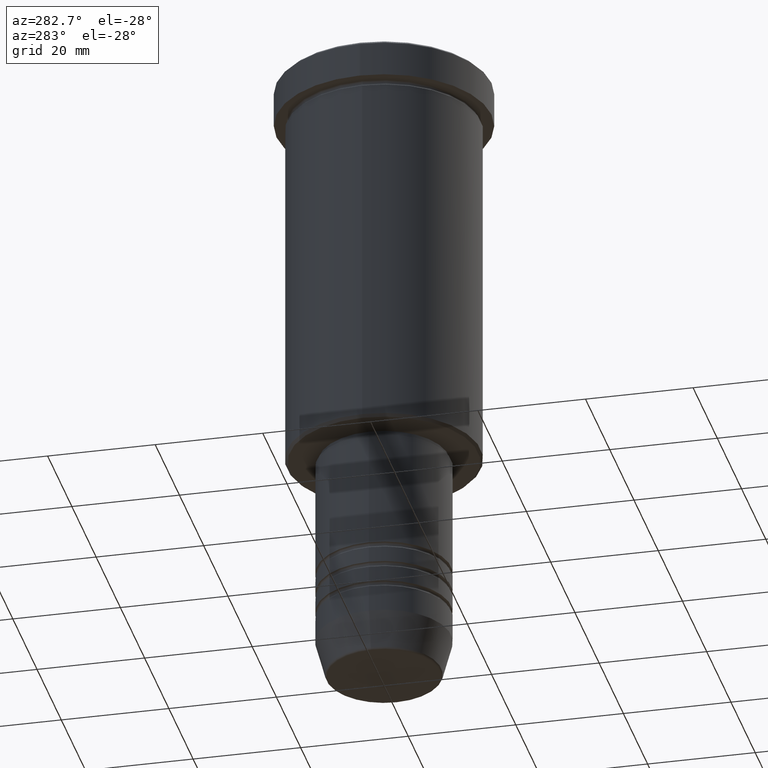
[diagram: clean part render]
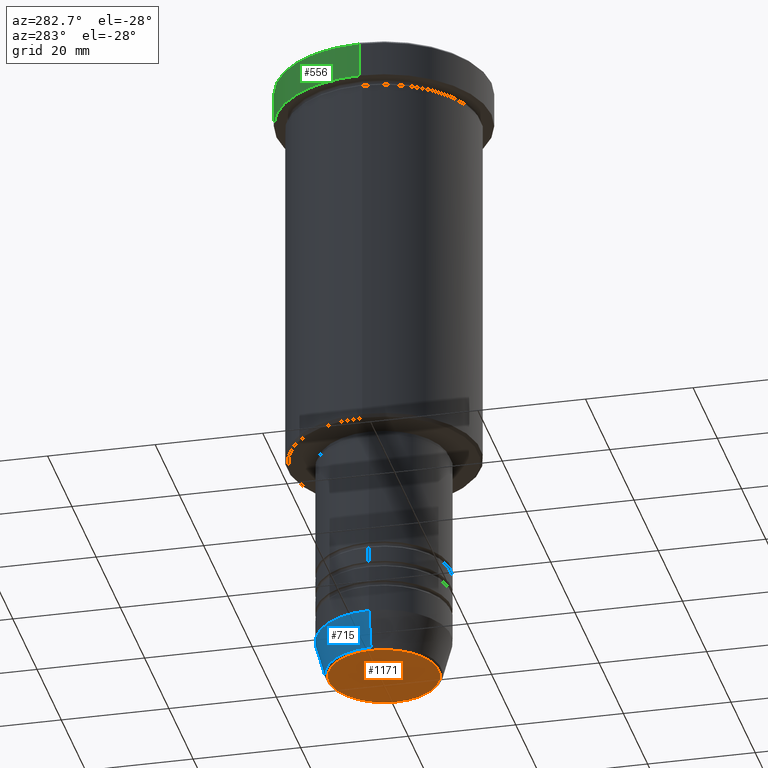
[diagram: same view with three faces highlighted in distinct colors, each labeled with its STEP entity id]
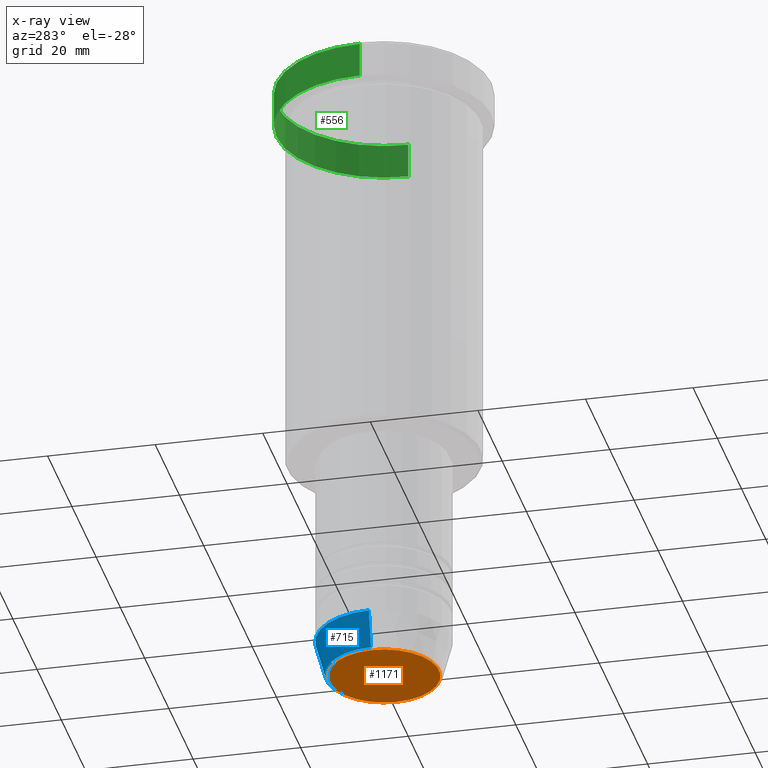
[diagram: x-ray of the same camera — body ghosted, the three highlighted faces saturated]
A machine part, auxiliary view with three faces highlighted in distinct colors.
The next image is the same camera in x-ray (body ghosted, the three faces saturated) — at least one of them is partly hidden behind the body in this view.
Their STEP definitions:

[orange] entity #1171 — the highlighted planar face has unit normal (0, -0, 1).
#22 = EDGE_CURVE ( 'NONE', #698, #440, #595, .T. ) ;
#50 = DIRECTION ( 'NONE',  ( 0.000000000000000000, -0.000000000000000000, 1.000000000000000000 ) ) ;
#135 = DIRECTION ( 'NONE',  ( 1.000000000000000000, 0.000000000000000000, 0.000000000000000000 ) ) ;
#145 = FACE_OUTER_BOUND ( 'NONE', #519, .T. ) ;
#168 = AXIS2_PLACEMENT_3D ( 'NONE', #262, #181, #466 ) ;
#181 = DIRECTION ( 'NONE',  ( 0.000000000000000000, 0.000000000000000000, -1.000000000000000000 ) ) ;
#262 = CARTESIAN_POINT ( 'NONE',  ( 0.000000000000000000, 0.000000000000000000, -120.0000000000000000 ) ) ;
#266 = CIRCLE ( 'NONE', #709, 10.24069215899265473 ) ;
#296 = CARTESIAN_POINT ( 'NONE',  ( 0.000000000000000000, 0.000000000000000000, -120.0000000000000000 ) ) ;
#440 = VERTEX_POINT ( 'NONE', #642 ) ;
#466 = DIRECTION ( 'NONE',  ( 1.000000000000000000, 0.000000000000000000, 0.000000000000000000 ) ) ;
#470 = ORIENTED_EDGE ( 'NONE', *, *, #1021, .T. ) ;
#518 = PLANE ( 'NONE',  #938 ) ;
#519 = EDGE_LOOP ( 'NONE', ( #470, #787 ) ) ;
#595 = CIRCLE ( 'NONE', #168, 10.24069215899265473 ) ;
#642 = CARTESIAN_POINT ( 'NONE',  ( 10.24069215899265473, 0.000000000000000000, -120.0000000000000000 ) ) ;
#677 = DIRECTION ( 'NONE',  ( 0.000000000000000000, 0.000000000000000000, -1.000000000000000000 ) ) ;
#698 = VERTEX_POINT ( 'NONE', #932 ) ;
#709 = AXIS2_PLACEMENT_3D ( 'NONE', #296, #677, #770 ) ;
#770 = DIRECTION ( 'NONE',  ( 1.000000000000000000, 0.000000000000000000, 0.000000000000000000 ) ) ;
#787 = ORIENTED_EDGE ( 'NONE', *, *, #22, .T. ) ;
#877 = CARTESIAN_POINT ( 'NONE',  ( 0.000000000000000000, 0.000000000000000000, -120.0000000000000000 ) ) ;
#932 = CARTESIAN_POINT ( 'NONE',  ( -10.24069215899265473, 1.283696036640841981E-15, -120.0000000000000000 ) ) ;
#938 = AXIS2_PLACEMENT_3D ( 'NONE', #877, #50, #135 ) ;
#1021 = EDGE_CURVE ( 'NONE', #440, #698, #266, .T. ) ;
#1171 = ADVANCED_FACE ( 'NONE', ( #145 ), #518, .F. ) ;

[blue] entity #715 — the highlighted conical surface has half-angle 15 deg.
#4 = VERTEX_POINT ( 'NONE', #727 ) ;
#51 = VECTOR ( 'NONE', #658, 1000.000000000000000 ) ;
#134 = DIRECTION ( 'NONE',  ( 1.000000000000000000, 0.000000000000000000, 0.000000000000000000 ) ) ;
#180 = CARTESIAN_POINT ( 'NONE',  ( 12.50000000000000000, 0.000000000000000000, -112.9999999999999858 ) ) ;
#191 = ORIENTED_EDGE ( 'NONE', *, *, #662, .F. ) ;
#247 = VERTEX_POINT ( 'NONE', #1105 ) ;
#280 = LINE ( 'NONE', #358, #51 ) ;
#315 = DIRECTION ( 'NONE',  ( -0.000000000000000000, -0.000000000000000000, 1.000000000000000000 ) ) ;
#330 = ORIENTED_EDGE ( 'NONE', *, *, #881, .T. ) ;
#348 = AXIS2_PLACEMENT_3D ( 'NONE', #1099, #583, #982 ) ;
#358 = CARTESIAN_POINT ( 'NONE',  ( -12.50000000000000000, 1.530808498934191521E-15, -112.9999999999999858 ) ) ;
#370 = CONICAL_SURFACE ( 'NONE', #918, 12.50000000000000000, 0.2617993877991500740 ) ;
#393 = VECTOR ( 'NONE', #920, 1000.000000000000000 ) ;
#400 = VERTEX_POINT ( 'NONE', #573 ) ;
#429 = EDGE_LOOP ( 'NONE', ( #330, #949, #694, #191 ) ) ;
#431 = EDGE_CURVE ( 'NONE', #623, #4, #917, .T. ) ;
#456 = CARTESIAN_POINT ( 'NONE',  ( 0.000000000000000000, 0.000000000000000000, -112.9999999999999858 ) ) ;
#464 = DIRECTION ( 'NONE',  ( 1.000000000000000000, 0.000000000000000000, 0.000000000000000000 ) ) ;
#477 = CARTESIAN_POINT ( 'NONE',  ( 12.50000000000000000, 0.000000000000000000, -112.9999999999999858 ) ) ;
#573 = CARTESIAN_POINT ( 'NONE',  ( -10.72365507213718416, 1.422038742429749727E-15, -119.6294095225512564 ) ) ;
#583 = DIRECTION ( 'NONE',  ( -0.000000000000000000, -0.000000000000000000, 1.000000000000000000 ) ) ;
#617 = EDGE_CURVE ( 'NONE', #400, #4, #280, .T. ) ;
#623 = VERTEX_POINT ( 'NONE', #180 ) ;
#658 = DIRECTION ( 'NONE',  ( -0.2588190451025213501, 3.169619151431772337E-17, 0.9659258262890680902 ) ) ;
#662 = EDGE_CURVE ( 'NONE', #247, #623, #761, .T. ) ;
#694 = ORIENTED_EDGE ( 'NONE', *, *, #431, .F. ) ;
#715 = ADVANCED_FACE ( 'NONE', ( #774 ), #370, .T. ) ;
#727 = CARTESIAN_POINT ( 'NONE',  ( -12.50000000000000000, 1.530808498934191521E-15, -112.9999999999999858 ) ) ;
#761 = LINE ( 'NONE', #477, #393 ) ;
#774 = FACE_OUTER_BOUND ( 'NONE', #429, .T. ) ;
#881 = EDGE_CURVE ( 'NONE', #247, #400, #1107, .T. ) ;
#892 = DIRECTION ( 'NONE',  ( -0.000000000000000000, -0.000000000000000000, 1.000000000000000000 ) ) ;
#917 = CIRCLE ( 'NONE', #1149, 12.50000000000000000 ) ;
#918 = AXIS2_PLACEMENT_3D ( 'NONE', #1129, #315, #134 ) ;
#920 = DIRECTION ( 'NONE',  ( 0.2588190451025213501, 0.000000000000000000, 0.9659258262890680902 ) ) ;
#949 = ORIENTED_EDGE ( 'NONE', *, *, #617, .T. ) ;
#982 = DIRECTION ( 'NONE',  ( 1.000000000000000000, 0.000000000000000000, 0.000000000000000000 ) ) ;
#1099 = CARTESIAN_POINT ( 'NONE',  ( 0.000000000000000000, 0.000000000000000000, -119.6294095225512564 ) ) ;
#1105 = CARTESIAN_POINT ( 'NONE',  ( 10.72365507213718416, 0.000000000000000000, -119.6294095225512564 ) ) ;
#1107 = CIRCLE ( 'NONE', #348, 10.72365507213718416 ) ;
#1129 = CARTESIAN_POINT ( 'NONE',  ( 0.000000000000000000, 0.000000000000000000, -112.9999999999999858 ) ) ;
#1149 = AXIS2_PLACEMENT_3D ( 'NONE', #456, #892, #464 ) ;

[green] entity #556 — the highlighted cylindrical surface (partial cylindrical patch) has radius 20 mm, axis along (-0, -0, 1).
#36 = EDGE_CURVE ( 'NONE', #905, #997, #847, .T. ) ;
#43 = EDGE_CURVE ( 'NONE', #651, #997, #587, .T. ) ;
#61 = EDGE_CURVE ( 'NONE', #651, #359, #151, .T. ) ;
#64 = CARTESIAN_POINT ( 'NONE',  ( 0.000000000000000000, 0.000000000000000000, -6.999999999999995559 ) ) ;
#105 = DIRECTION ( 'NONE',  ( -0.000000000000000000, -0.000000000000000000, 1.000000000000000000 ) ) ;
#151 = CIRCLE ( 'NONE', #552, 20.00000000000000000 ) ;
#273 = DIRECTION ( 'NONE',  ( -0.000000000000000000, -0.000000000000000000, 1.000000000000000000 ) ) ;
#287 = CARTESIAN_POINT ( 'NONE',  ( 20.00000000000000000, 0.000000000000000000, -6.999999999999995559 ) ) ;
#289 = CARTESIAN_POINT ( 'NONE',  ( 0.000000000000000000, 0.000000000000000000, -0.5000000000000108802 ) ) ;
#310 = VECTOR ( 'NONE', #476, 1000.000000000000000 ) ;
#323 = CYLINDRICAL_SURFACE ( 'NONE', #499, 20.00000000000000000 ) ;
#359 = VERTEX_POINT ( 'NONE', #389 ) ;
#360 = DIRECTION ( 'NONE',  ( 1.000000000000000000, 0.000000000000000000, 0.000000000000000000 ) ) ;
#376 = LINE ( 'NONE', #483, #310 ) ;
#389 = CARTESIAN_POINT ( 'NONE',  ( -20.00000000000000000, 2.449293598294706513E-15, -6.999999999999995559 ) ) ;
#471 = CARTESIAN_POINT ( 'NONE',  ( -20.00000000000000000, 2.449293598294706513E-15, -0.5000000000000108802 ) ) ;
#476 = DIRECTION ( 'NONE',  ( -0.000000000000000000, -0.000000000000000000, 1.000000000000000000 ) ) ;
#483 = CARTESIAN_POINT ( 'NONE',  ( -20.00000000000000000, 2.449293598294706513E-15, 0.000000000000000000 ) ) ;
#493 = CARTESIAN_POINT ( 'NONE',  ( 20.00000000000000000, 0.000000000000000000, 0.000000000000000000 ) ) ;
#496 = AXIS2_PLACEMENT_3D ( 'NONE', #289, #668, #960 ) ;
#499 = AXIS2_PLACEMENT_3D ( 'NONE', #1025, #273, #1079 ) ;
#552 = AXIS2_PLACEMENT_3D ( 'NONE', #64, #1077, #360 ) ;
#556 = ADVANCED_FACE ( 'NONE', ( #866 ), #323, .T. ) ;
#569 = ORIENTED_EDGE ( 'NONE', *, *, #36, .T. ) ;
#587 = LINE ( 'NONE', #493, #793 ) ;
#647 = EDGE_CURVE ( 'NONE', #359, #905, #376, .T. ) ;
#651 = VERTEX_POINT ( 'NONE', #287 ) ;
#668 = DIRECTION ( 'NONE',  ( 0.000000000000000000, 0.000000000000000000, -1.000000000000000000 ) ) ;
#793 = VECTOR ( 'NONE', #105, 1000.000000000000000 ) ;
#847 = CIRCLE ( 'NONE', #496, 20.00000000000000000 ) ;
#854 = EDGE_LOOP ( 'NONE', ( #861, #1177, #569, #1057 ) ) ;
#861 = ORIENTED_EDGE ( 'NONE', *, *, #61, .T. ) ;
#866 = FACE_OUTER_BOUND ( 'NONE', #854, .T. ) ;
#905 = VERTEX_POINT ( 'NONE', #471 ) ;
#960 = DIRECTION ( 'NONE',  ( 1.000000000000000000, 0.000000000000000000, 0.000000000000000000 ) ) ;
#997 = VERTEX_POINT ( 'NONE', #1112 ) ;
#1025 = CARTESIAN_POINT ( 'NONE',  ( 0.000000000000000000, 0.000000000000000000, 0.000000000000000000 ) ) ;
#1057 = ORIENTED_EDGE ( 'NONE', *, *, #43, .F. ) ;
#1077 = DIRECTION ( 'NONE',  ( -0.000000000000000000, -0.000000000000000000, 1.000000000000000000 ) ) ;
#1079 = DIRECTION ( 'NONE',  ( 1.000000000000000000, 0.000000000000000000, 0.000000000000000000 ) ) ;
#1112 = CARTESIAN_POINT ( 'NONE',  ( 20.00000000000000000, 0.000000000000000000, -0.5000000000000108802 ) ) ;
#1177 = ORIENTED_EDGE ( 'NONE', *, *, #647, .T. ) ;